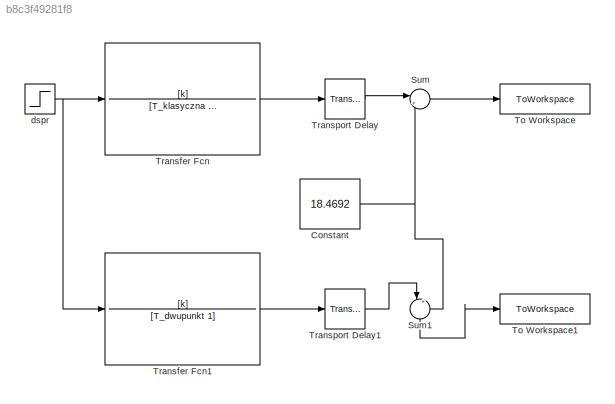
MODEL slx_b8c3f49281f8
KIND model
CONFIG AbsTol = auto
CONFIG EnableMultiTasking = off
CONFIG FixedStep = auto
CONFIG MaxStep = 1
CONFIG MinStep = auto
CONFIG RelTol = 1e-3
CONFIG SampleTimeConstraint = Unconstrained
CONFIG SolverName = VariableStepAuto
CONFIG StartTime = 0.0
CONFIG StopTime = 10.0
BLOCK [Constant] Constant
  Value = 18.4692
BLOCK [Sum] Sum
  Inputs = |++
  Ports = [2, 1]
BLOCK [Sum] Sum1
  Inputs = |++
  NameLocation = left
  Ports = [2, 1]
BLOCK [ToWorkspace] To Workspace
  FixptAsFi = on
  MaxDataPoints = inf
  Ports = [1]
  SampleTime = -1
  VariableName = kupfmuller
BLOCK [ToWorkspace] To Workspace1
  FixptAsFi = on
  MaxDataPoints = inf
  Ports = [1]
  SampleTime = -1
  VariableName = dwupunktowa
BLOCK [TransferFcn] Transfer Fcn
  Denominator = [T_klasyczna 1]
  Numerator = [k]
BLOCK [TransferFcn] Transfer Fcn1
  Denominator = [T_dwupunkt 1]
  Numerator = [k]
BLOCK [TransportDelay] Transport Delay
  BufferSize = 32768
  DelayTime = T0_klasyczna
  Ports = [1, 1]
BLOCK [TransportDelay] Transport Delay1
  BufferSize = 32768
  DelayTime = T0_dwupunkt
  Ports = [1, 1]
BLOCK [Step] dspr
  After = dspr
  SampleTime = 0
  Time = czas_skoku_10pro
NET Constant:1 -> Sum1:2, Sum:2
LINE Sum1:1 -> To Workspace1:1
LINE Sum:1 -> To Workspace:1
LINE Transfer Fcn1:1 -> Transport Delay1:1
LINE Transfer Fcn:1 -> Transport Delay:1
LINE Transport Delay1:1 -> Sum1:1
LINE Transport Delay:1 -> Sum:1
NET dspr:1 -> Transfer Fcn1:1, Transfer Fcn:1
note: NET lines group one-source signal fan-out (src -> all destinations, sorted); 1:1 wires keep LINE
